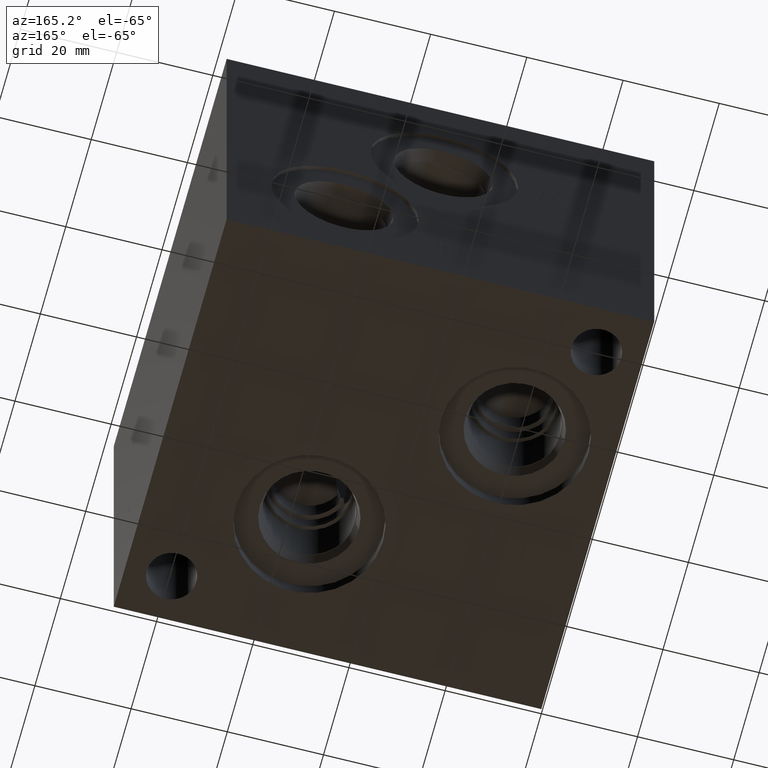
[diagram: clean part render]
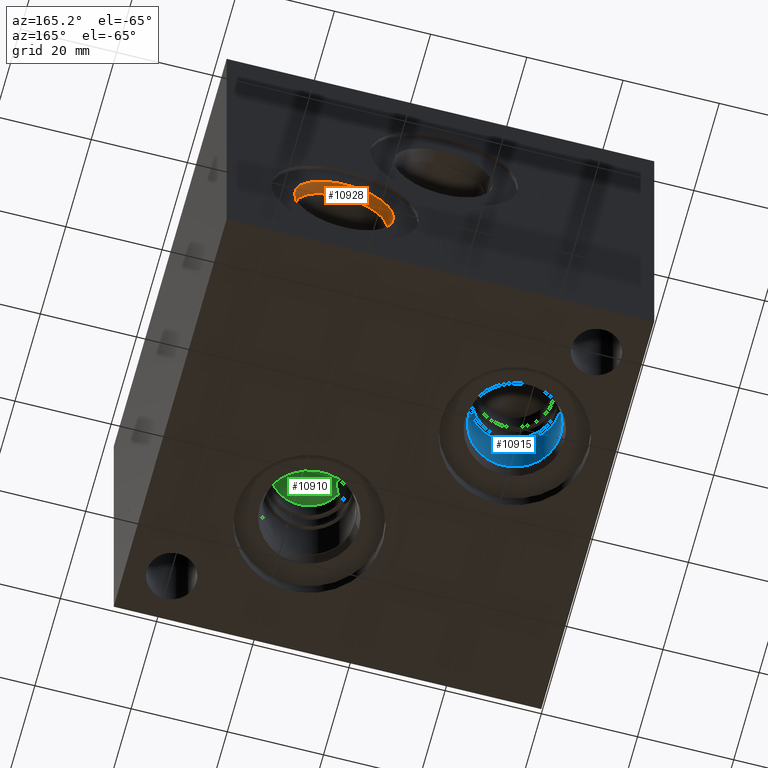
[diagram: same view with three faces highlighted in distinct colors, each labeled with its STEP entity id]
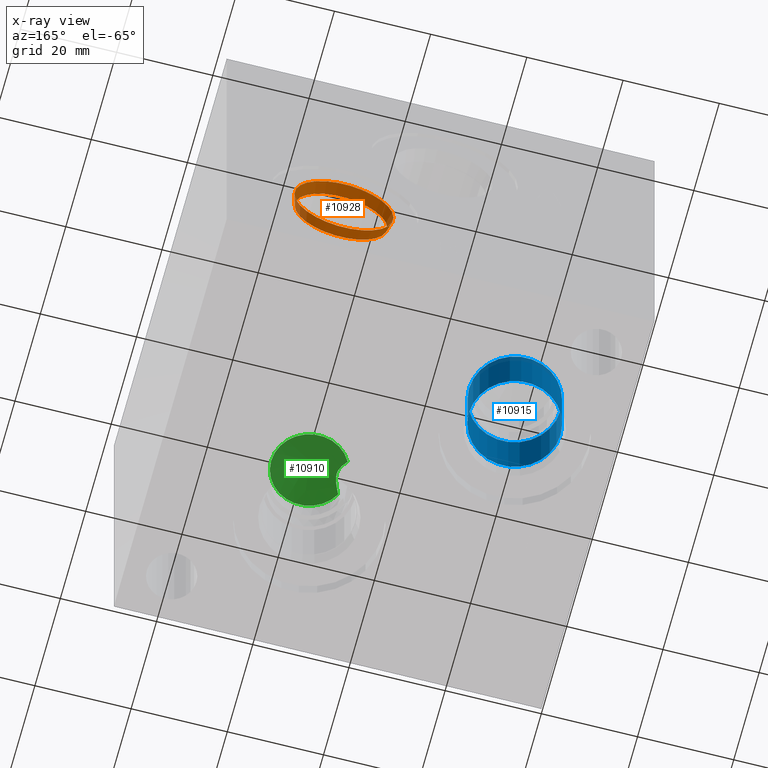
[diagram: x-ray of the same camera — body ghosted, the three highlighted faces saturated]
A machine part, auxiliary view with three faces highlighted in distinct colors.
The next image is the same camera in x-ray (body ghosted, the three faces saturated) — at least one of them is partly hidden behind the body in this view.
Their STEP definitions:

[orange] entity #10928 — the highlighted conical surface has half-angle 15.05 deg.
#23=CONICAL_SURFACE('',#11399,9.96315000000001,0.262678410964687);
#155=CIRCLE('',#11397,10.2997);
#156=CIRCLE('',#11398,10.2997);
#157=CIRCLE('',#11400,9.6266);
#158=CIRCLE('',#11401,9.6266);
#1169=FACE_OUTER_BOUND('',#1786,.T.);
#1786=EDGE_LOOP('',(#9392,#9393,#9394,#9395,#9396,#9397));
#2836=LINE('',#18650,#3840);
#3840=VECTOR('',#13302,9.96315000000001);
#5118=VERTEX_POINT('',#18644);
#5119=VERTEX_POINT('',#18645);
#5120=VERTEX_POINT('',#18649);
#5121=VERTEX_POINT('',#18651);
#6586=EDGE_CURVE('',#5118,#5119,#155,.T.);
#6587=EDGE_CURVE('',#5119,#5118,#156,.T.);
#6588=EDGE_CURVE('',#5119,#5120,#2836,.T.);
#6589=EDGE_CURVE('',#5120,#5121,#157,.T.);
#6590=EDGE_CURVE('',#5121,#5120,#158,.T.);
#9392=ORIENTED_EDGE('',*,*,#6586,.F.);
#9393=ORIENTED_EDGE('',*,*,#6587,.F.);
#9394=ORIENTED_EDGE('',*,*,#6588,.T.);
#9395=ORIENTED_EDGE('',*,*,#6589,.T.);
#9396=ORIENTED_EDGE('',*,*,#6590,.T.);
#9397=ORIENTED_EDGE('',*,*,#6588,.F.);
#10928=ADVANCED_FACE('',(#1169),#23,.F.);
#11397=AXIS2_PLACEMENT_3D('',#18646,#13296,#13297);
#11398=AXIS2_PLACEMENT_3D('',#18647,#13298,#13299);
#11399=AXIS2_PLACEMENT_3D('',#18648,#13300,#13301);
#11400=AXIS2_PLACEMENT_3D('',#18652,#13303,#13304);
#11401=AXIS2_PLACEMENT_3D('',#18653,#13305,#13306);
#13296=DIRECTION('center_axis',(0.,-1.,0.));
#13297=DIRECTION('ref_axis',(1.,0.,0.));
#13298=DIRECTION('center_axis',(0.,-1.,0.));
#13299=DIRECTION('ref_axis',(1.,0.,0.));
#13300=DIRECTION('center_axis',(0.,1.,0.));
#13301=DIRECTION('ref_axis',(1.,0.,0.));
#13302=DIRECTION('',(0.259668016178309,-0.965697945205446,3.18001604853709E-17));
#13303=DIRECTION('center_axis',(0.,-1.,0.));
#13304=DIRECTION('ref_axis',(1.,0.,0.));
#13305=DIRECTION('center_axis',(0.,-1.,0.));
#13306=DIRECTION('ref_axis',(1.,0.,0.));
#18644=CARTESIAN_POINT('',(74.5871,88.1126,21.4376));
#18645=CARTESIAN_POINT('',(53.9877,88.1126,21.4376));
#18646=CARTESIAN_POINT('Origin',(64.2874,88.1126,21.4376));
#18647=CARTESIAN_POINT('Origin',(64.2874,88.1126,21.4376));
#18648=CARTESIAN_POINT('Origin',(64.2874,86.86098015,21.4376));
#18649=CARTESIAN_POINT('',(54.6608,85.6093603,21.4376));
#18650=CARTESIAN_POINT('',(54.32425,86.86098015,21.4376));
#18651=CARTESIAN_POINT('',(73.914,85.6093603,21.4376));
#18652=CARTESIAN_POINT('Origin',(64.2874,85.6093603,21.4376));
#18653=CARTESIAN_POINT('Origin',(64.2874,85.6093603,21.4376));

[blue] entity #10915 — the highlighted cylindrical surface (bore or boss wall) has radius 9.525 mm, axis along (0, 0, -1).
#56=CYLINDRICAL_SURFACE('',#11369,9.525);
#137=CIRCLE('',#11366,9.525);
#138=CIRCLE('',#11367,9.525);
#140=CIRCLE('',#11370,9.525);
#1156=FACE_OUTER_BOUND('',#1770,.T.);
#1770=EDGE_LOOP('',(#9327,#9328,#9329,#9330,#9331));
#2827=LINE('',#18596,#3831);
#3831=VECTOR('',#13235,9.525);
#5101=VERTEX_POINT('',#18587);
#5102=VERTEX_POINT('',#18588);
#5104=VERTEX_POINT('',#18594);
#6559=EDGE_CURVE('',#5101,#5102,#137,.T.);
#6560=EDGE_CURVE('',#5102,#5101,#138,.T.);
#6562=EDGE_CURVE('',#5104,#5104,#140,.T.);
#6563=EDGE_CURVE('',#5104,#5102,#2827,.T.);
#9327=ORIENTED_EDGE('',*,*,#6562,.F.);
#9328=ORIENTED_EDGE('',*,*,#6563,.T.);
#9329=ORIENTED_EDGE('',*,*,#6559,.F.);
#9330=ORIENTED_EDGE('',*,*,#6560,.F.);
#9331=ORIENTED_EDGE('',*,*,#6563,.F.);
#10915=ADVANCED_FACE('',(#1156),#56,.F.);
#11366=AXIS2_PLACEMENT_3D('',#18589,#13225,#13226);
#11367=AXIS2_PLACEMENT_3D('',#18590,#13227,#13228);
#11369=AXIS2_PLACEMENT_3D('',#18593,#13231,#13232);
#11370=AXIS2_PLACEMENT_3D('',#18595,#13233,#13234);
#13225=DIRECTION('center_axis',(0.,0.,-1.));
#13226=DIRECTION('ref_axis',(1.,0.,0.));
#13227=DIRECTION('center_axis',(0.,0.,-1.));
#13228=DIRECTION('ref_axis',(1.,0.,0.));
#13231=DIRECTION('center_axis',(0.,0.,-1.));
#13232=DIRECTION('ref_axis',(1.,0.,0.));
#13233=DIRECTION('center_axis',(0.,0.,1.));
#13234=DIRECTION('ref_axis',(1.,0.,0.));
#13235=DIRECTION('',(0.,0.,1.));
#18587=CARTESIAN_POINT('',(30.1498,57.15,17.4498));
#18588=CARTESIAN_POINT('',(11.0998,57.15,17.4498));
#18589=CARTESIAN_POINT('Origin',(20.6248,57.15,17.4498));
#18590=CARTESIAN_POINT('Origin',(20.6248,57.15,17.4498));
#18593=CARTESIAN_POINT('Origin',(20.6248,57.15,8.7249));
#18594=CARTESIAN_POINT('',(11.0998,57.15,5.7912));
#18595=CARTESIAN_POINT('Origin',(20.6248,57.15,5.7912));
#18596=CARTESIAN_POINT('',(11.0998,57.15,8.7249));

[green] entity #10910 — the highlighted conical surface has half-angle 60 deg.
#17=CONICAL_SURFACE('',#11355,3.96875,1.0471975511966);
#131=CIRCLE('',#11356,7.9375);
#1151=FACE_OUTER_BOUND('',#1764,.T.);
#1764=EDGE_LOOP('',(#9298,#9299,#9300,#9301,#9302));
#2824=LINE('',#18509,#3828);
#3828=VECTOR('',#13204,3.96875);
#4231=B_SPLINE_CURVE_WITH_KNOTS('',3,(#18486,#18487,#18488,#18489,#18490,
#18491,#18492,#18493,#18494,#18495),.UNSPECIFIED.,.F.,.F.,(4,2,2,2,4),(2.12547669787805,
2.20683674306886,2.35395919260678,2.44723016165691,2.54050113070703),
 .UNSPECIFIED.);
#4232=B_SPLINE_CURVE_WITH_KNOTS('',3,(#18498,#18499,#18500,#18501,#18502,
#18503,#18504,#18505,#18506,#18507),.UNSPECIFIED.,.F.,.F.,(4,2,2,2,4),(2.54050113070703,
2.63377209975716,2.72704306880729,2.87416551834521,2.95552556353599),
 .UNSPECIFIED.);
#5088=VERTEX_POINT('',#18484);
#5089=VERTEX_POINT('',#18485);
#5090=VERTEX_POINT('',#18496);
#5091=VERTEX_POINT('',#18508);
#6542=EDGE_CURVE('',#5088,#5089,#4231,.T.);
#6543=EDGE_CURVE('',#5088,#5090,#131,.T.);
#6544=EDGE_CURVE('',#5089,#5090,#4232,.T.);
#6545=EDGE_CURVE('',#5089,#5091,#2824,.T.);
#9298=ORIENTED_EDGE('',*,*,#6542,.F.);
#9299=ORIENTED_EDGE('',*,*,#6543,.T.);
#9300=ORIENTED_EDGE('',*,*,#6544,.F.);
#9301=ORIENTED_EDGE('',*,*,#6545,.T.);
#9302=ORIENTED_EDGE('',*,*,#6545,.F.);
#10910=ADVANCED_FACE('',(#1151),#17,.F.);
#11355=AXIS2_PLACEMENT_3D('',#18483,#13200,#13201);
#11356=AXIS2_PLACEMENT_3D('',#18497,#13202,#13203);
#13200=DIRECTION('center_axis',(0.,0.,-1.));
#13201=DIRECTION('ref_axis',(1.,0.,0.));
#13202=DIRECTION('center_axis',(0.,0.,-1.));
#13203=DIRECTION('ref_axis',(1.,0.,0.));
#13204=DIRECTION('',(0.866025403784439,-1.06057523872491E-16,0.5));
#18483=CARTESIAN_POINT('Origin',(55.5752,27.7876,27.9018788808463));
#18484=CARTESIAN_POINT('',(48.5821000464982,31.5426578278281,25.61052));
#18485=CARTESIAN_POINT('',(49.8833832346321,27.7876,26.9070658200295));
#18486=CARTESIAN_POINT('Ctrl Pts',(48.5821000464977,31.5426578278277,25.6105199999998));
#18487=CARTESIAN_POINT('Ctrl Pts',(48.7020013638707,31.3279495899399,25.7301523398655));
#18488=CARTESIAN_POINT('Ctrl Pts',(48.8190601987755,31.1115697794956,25.8469199172342));
#18489=CARTESIAN_POINT('Ctrl Pts',(49.1366967003104,30.4954319460226,26.1636702571756));
#18490=CARTESIAN_POINT('Ctrl Pts',(49.3294882050638,30.0900600210416,26.3558004608478));
#18491=CARTESIAN_POINT('Ctrl Pts',(49.599155459261,29.3848872709252,26.6243352197417));
#18492=CARTESIAN_POINT('Ctrl Pts',(49.7012100766725,29.0747697269952,26.725894361969));
#18493=CARTESIAN_POINT('Ctrl Pts',(49.8445088056424,28.4320990053352,26.8684296138672));
#18494=CARTESIAN_POINT('Ctrl Pts',(49.8833832346321,28.0985032301671,26.9070658200295));
#18495=CARTESIAN_POINT('Ctrl Pts',(49.8833832346321,27.7876,26.9070658200295));
#18496=CARTESIAN_POINT('',(48.5821000464978,24.0325421721726,25.61052));
#18497=CARTESIAN_POINT('Origin',(55.5752,27.7876,25.61052));
#18498=CARTESIAN_POINT('Ctrl Pts',(49.8833832346321,27.7876,26.9070658200295));
#18499=CARTESIAN_POINT('Ctrl Pts',(49.8833832346321,27.4766967698329,26.9070658200295));
#18500=CARTESIAN_POINT('Ctrl Pts',(49.8445088056424,27.1431009946649,26.8684296138672));
#18501=CARTESIAN_POINT('Ctrl Pts',(49.7012100766725,26.5004302730048,26.725894361969));
#18502=CARTESIAN_POINT('Ctrl Pts',(49.599155459261,26.1903127290748,26.6243352197417));
#18503=CARTESIAN_POINT('Ctrl Pts',(49.3294882050638,25.4851399789584,26.3558004608478));
#18504=CARTESIAN_POINT('Ctrl Pts',(49.1366967003104,25.0797680539775,26.1636702571756));
#18505=CARTESIAN_POINT('Ctrl Pts',(48.8190601987755,24.4636302205045,25.8469199172342));
#18506=CARTESIAN_POINT('Ctrl Pts',(48.7020013638708,24.2472504100603,25.7301523398656));
#18507=CARTESIAN_POINT('Ctrl Pts',(48.5821000464978,24.0325421721726,25.61052));
#18508=CARTESIAN_POINT('',(55.5752,27.7876,30.1932377616927));
#18509=CARTESIAN_POINT('',(51.60645,27.7876,27.9018788808463));